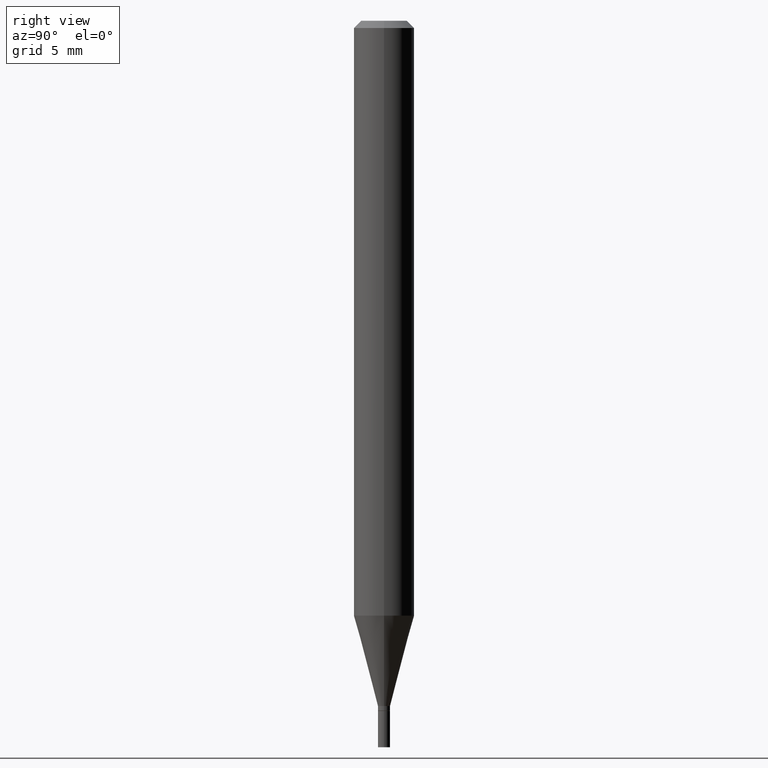
[diagram: clean part render]
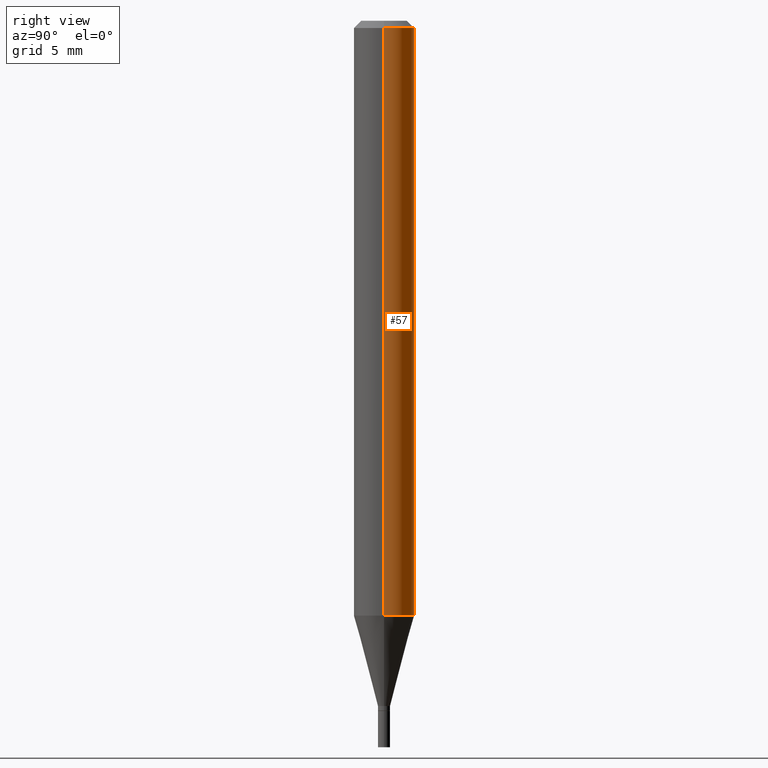
[diagram: same view with one face highlighted and labeled with its STEP entity id]
A machine part, right view. The second image highlights one B-rep face of the part: STEP entity #57.
In plain terms, the highlighted cylindrical surface (edge-blend (fillet) strip) has radius 1.5875 mm, axis along (-0, 0, 1).
Its self-contained STEP definition (entity closure, byte-faithful):
#8 = CIRCLE ( 'NONE', #134, 0.06250000000000000000 ) ;
#12 = EDGE_CURVE ( 'NONE', #447, #336, #194, .T. ) ;
#15 = DIRECTION ( 'NONE',  ( 1.000000000000000000, -6.982962677686262766E-15, 0.000000000000000000 ) ) ;
#21 = ORIENTED_EDGE ( 'NONE', *, *, #428, .F. ) ;
#23 = ORIENTED_EDGE ( 'NONE', *, *, #12, .T. ) ;
#57 = ADVANCED_FACE ( 'NONE', ( #279 ), #454, .T. ) ;
#92 = VECTOR ( 'NONE', #124, 39.37007874015748143 ) ;
#110 = VERTEX_POINT ( 'NONE', #223 ) ;
#124 = DIRECTION ( 'NONE',  ( -2.445468806185136877E-29, 3.491481338843145188E-15, 1.000000000000000000 ) ) ;
#131 = DIRECTION ( 'NONE',  ( -2.445468806185136877E-29, 3.491481338843145188E-15, 1.000000000000000000 ) ) ;
#134 = AXIS2_PLACEMENT_3D ( 'NONE', #229, #308, #15 ) ;
#135 = DIRECTION ( 'NONE',  ( -2.445468806185136597E-29, 3.491481338843145583E-15, 1.000000000000000000 ) ) ;
#160 = ORIENTED_EDGE ( 'NONE', *, *, #367, .F. ) ;
#167 = LINE ( 'NONE', #305, #372 ) ;
#182 = DIRECTION ( 'NONE',  ( -2.445468806185136597E-29, 3.491481338843145583E-15, 1.000000000000000000 ) ) ;
#194 = LINE ( 'NONE', #335, #92 ) ;
#205 = DIRECTION ( 'NONE',  ( 1.000000000000000000, -6.982962677686266711E-15, 0.000000000000000000 ) ) ;
#223 = CARTESIAN_POINT ( 'NONE',  ( 0.06250000000000001388, -4.725361974306381794E-15, -1.228397459621556109 ) ) ;
#229 = CARTESIAN_POINT ( 'NONE',  ( 3.004007669101581496E-29, -4.288926806950990124E-15, -1.228397459621556109 ) ) ;
#251 = VERTEX_POINT ( 'NONE', #400 ) ;
#253 = CARTESIAN_POINT ( 'NONE',  ( -0.06250000000000001388, -3.844837597100926719E-15, -1.228397459621556109 ) ) ;
#262 = CIRCLE ( 'NONE', #429, 0.06250000000000000000 ) ;
#272 = CARTESIAN_POINT ( 'NONE',  ( 3.668203209277705088E-31, -5.237222008264718399E-17, -0.01499999999999999944 ) ) ;
#279 = FACE_OUTER_BOUND ( 'NONE', #436, .T. ) ;
#282 = CARTESIAN_POINT ( 'NONE',  ( 0.000000000000000000, 0.000000000000000000, 0.000000000000000000 ) ) ;
#305 = CARTESIAN_POINT ( 'NONE',  ( 0.06250000000000000000, -4.364351673553916694E-16, 3.047610484872459871E-30 ) ) ;
#308 = DIRECTION ( 'NONE',  ( -2.445468806185136597E-29, 3.491481338843145583E-15, 1.000000000000000000 ) ) ;
#316 = EDGE_CURVE ( 'NONE', #110, #447, #8, .T. ) ;
#335 = CARTESIAN_POINT ( 'NONE',  ( -0.06250000000000000000, 4.440892098500626162E-16, -3.074334431409316114E-30 ) ) ;
#336 = VERTEX_POINT ( 'NONE', #443 ) ;
#367 = EDGE_CURVE ( 'NONE', #251, #336, #262, .T. ) ;
#372 = VECTOR ( 'NONE', #131, 39.37007874015748143 ) ;
#384 = ORIENTED_EDGE ( 'NONE', *, *, #316, .T. ) ;
#400 = CARTESIAN_POINT ( 'NONE',  ( 0.06250000000000000000, -4.888073874380388472E-16, -0.01499999999999999944 ) ) ;
#414 = AXIS2_PLACEMENT_3D ( 'NONE', #282, #182, #426 ) ;
#426 = DIRECTION ( 'NONE',  ( 1.000000000000000000, -6.982962677686266711E-15, 4.876176775795935793E-29 ) ) ;
#428 = EDGE_CURVE ( 'NONE', #110, #251, #167, .T. ) ;
#429 = AXIS2_PLACEMENT_3D ( 'NONE', #272, #135, #205 ) ;
#436 = EDGE_LOOP ( 'NONE', ( #384, #23, #160, #21 ) ) ;
#443 = CARTESIAN_POINT ( 'NONE',  ( -0.06250000000000000000, -1.726560303666755986E-15, -0.01499999999999999944 ) ) ;
#447 = VERTEX_POINT ( 'NONE', #253 ) ;
#454 = CYLINDRICAL_SURFACE ( 'NONE', #414, 0.06250000000000000000 ) ;